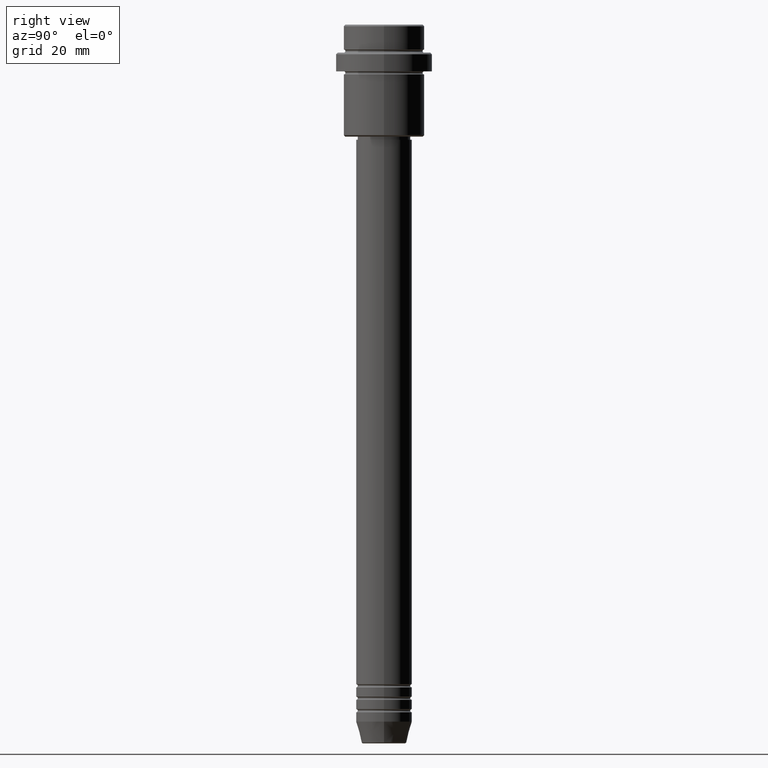
[diagram: clean part render]
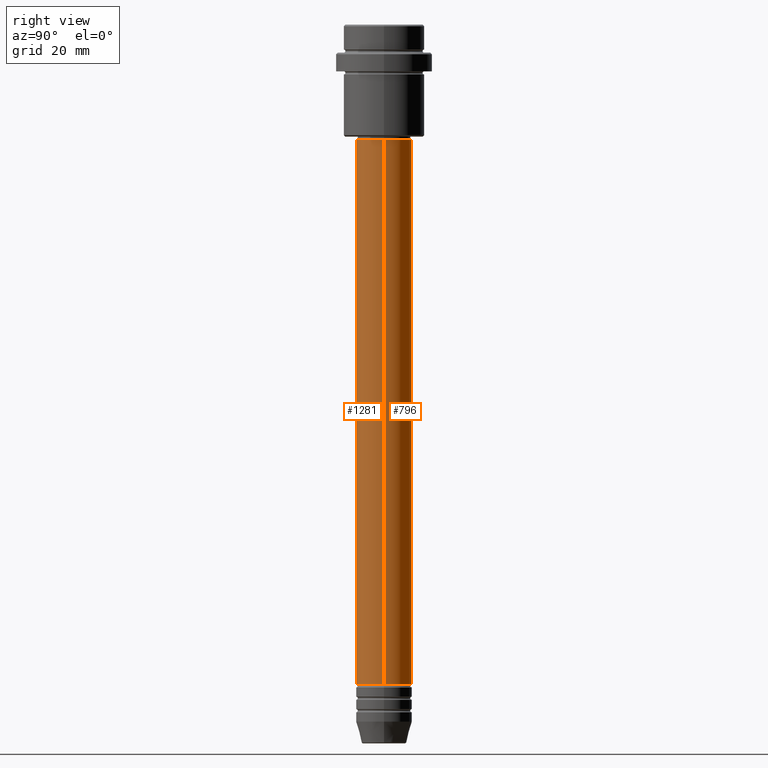
[diagram: same view with one multi-face feature highlighted, each face labeled with its STEP entity id]
A machine part, right view. The highlighted faces form ONE feature: a constant-radius fillet chain: 2 tangent blend faces with common blend radius 9 mm. The faces share edges in the B-rep.
Their STEP definitions:
[1] entity #1281 (Cylinder):
#24 = FACE_OUTER_BOUND ( 'NONE', #227, .T. ) ;
#79 = EDGE_CURVE ( 'NONE', #147, #288, #219, .T. ) ;
#119 = CARTESIAN_POINT ( 'NONE',  ( 0.000000000000000000, 0.000000000000000000, 0.000000000000000000 ) ) ;
#137 = ORIENTED_EDGE ( 'NONE', *, *, #79, .T. ) ;
#147 = VERTEX_POINT ( 'NONE', #1400 ) ;
#149 = LINE ( 'NONE', #588, #850 ) ;
#152 = CARTESIAN_POINT ( 'NONE',  ( 0.000000000000000000, 0.000000000000000000, -37.00000000000001421 ) ) ;
#219 = LINE ( 'NONE', #774, #389 ) ;
#227 = EDGE_LOOP ( 'NONE', ( #1068, #361, #137, #1385 ) ) ;
#254 = CIRCLE ( 'NONE', #961, 9.000000000000000000 ) ;
#270 = EDGE_CURVE ( 'NONE', #687, #147, #254, .T. ) ;
#288 = VERTEX_POINT ( 'NONE', #457 ) ;
#361 = ORIENTED_EDGE ( 'NONE', *, *, #270, .T. ) ;
#389 = VECTOR ( 'NONE', #446, 1000.000000000000000 ) ;
#416 = CIRCLE ( 'NONE', #1058, 9.000000000000001776 ) ;
#446 = DIRECTION ( 'NONE',  ( -0.000000000000000000, -0.000000000000000000, 1.000000000000000000 ) ) ;
#457 = CARTESIAN_POINT ( 'NONE',  ( 9.000000000000001776, 0.000000000000000000, -37.00000000000001421 ) ) ;
#582 = DIRECTION ( 'NONE',  ( -0.000000000000000000, -0.000000000000000000, 1.000000000000000000 ) ) ;
#588 = CARTESIAN_POINT ( 'NONE',  ( -9.000000000000001776, 1.102182119232617911E-15, 0.000000000000000000 ) ) ;
#598 = DIRECTION ( 'NONE',  ( -0.000000000000000000, -0.000000000000000000, 1.000000000000000000 ) ) ;
#622 = EDGE_CURVE ( 'NONE', #687, #1361, #149, .T. ) ;
#687 = VERTEX_POINT ( 'NONE', #861 ) ;
#773 = DIRECTION ( 'NONE',  ( 1.000000000000000000, 0.000000000000000000, 0.000000000000000000 ) ) ;
#774 = CARTESIAN_POINT ( 'NONE',  ( 9.000000000000001776, 0.000000000000000000, 0.000000000000000000 ) ) ;
#850 = VECTOR ( 'NONE', #1023, 1000.000000000000000 ) ;
#852 = AXIS2_PLACEMENT_3D ( 'NONE', #119, #886, #773 ) ;
#861 = CARTESIAN_POINT ( 'NONE',  ( -9.000000000000000000, 1.102182119232617714E-15, -211.9999999999999432 ) ) ;
#886 = DIRECTION ( 'NONE',  ( -0.000000000000000000, -0.000000000000000000, 1.000000000000000000 ) ) ;
#923 = CARTESIAN_POINT ( 'NONE',  ( 0.000000000000000000, 0.000000000000000000, -211.9999999999999432 ) ) ;
#961 = AXIS2_PLACEMENT_3D ( 'NONE', #923, #582, #1338 ) ;
#1018 = EDGE_CURVE ( 'NONE', #1361, #288, #416, .T. ) ;
#1023 = DIRECTION ( 'NONE',  ( -0.000000000000000000, -0.000000000000000000, 1.000000000000000000 ) ) ;
#1058 = AXIS2_PLACEMENT_3D ( 'NONE', #152, #598, #1339 ) ;
#1068 = ORIENTED_EDGE ( 'NONE', *, *, #622, .F. ) ;
#1096 = CYLINDRICAL_SURFACE ( 'NONE', #852, 9.000000000000001776 ) ;
#1281 = ADVANCED_FACE ( 'NONE', ( #24 ), #1096, .T. ) ;
#1338 = DIRECTION ( 'NONE',  ( 1.000000000000000000, 0.000000000000000000, 0.000000000000000000 ) ) ;
#1339 = DIRECTION ( 'NONE',  ( 1.000000000000000000, 0.000000000000000000, 0.000000000000000000 ) ) ;
#1345 = CARTESIAN_POINT ( 'NONE',  ( -9.000000000000001776, 1.102182119232617911E-15, -37.00000000000001421 ) ) ;
#1361 = VERTEX_POINT ( 'NONE', #1345 ) ;
#1385 = ORIENTED_EDGE ( 'NONE', *, *, #1018, .F. ) ;
#1400 = CARTESIAN_POINT ( 'NONE',  ( 9.000000000000000000, 0.000000000000000000, -211.9999999999999432 ) ) ;
[2] entity #796 (Cylinder):
#31 = AXIS2_PLACEMENT_3D ( 'NONE', #982, #1228, #989 ) ;
#79 = EDGE_CURVE ( 'NONE', #147, #288, #219, .T. ) ;
#147 = VERTEX_POINT ( 'NONE', #1400 ) ;
#149 = LINE ( 'NONE', #588, #850 ) ;
#151 = CARTESIAN_POINT ( 'NONE',  ( 0.000000000000000000, 0.000000000000000000, -37.00000000000001421 ) ) ;
#191 = ORIENTED_EDGE ( 'NONE', *, *, #311, .F. ) ;
#219 = LINE ( 'NONE', #774, #389 ) ;
#288 = VERTEX_POINT ( 'NONE', #457 ) ;
#311 = EDGE_CURVE ( 'NONE', #288, #1361, #646, .T. ) ;
#389 = VECTOR ( 'NONE', #446, 1000.000000000000000 ) ;
#407 = DIRECTION ( 'NONE',  ( -0.000000000000000000, -0.000000000000000000, 1.000000000000000000 ) ) ;
#409 = FACE_OUTER_BOUND ( 'NONE', #410, .T. ) ;
#410 = EDGE_LOOP ( 'NONE', ( #955, #1207, #191, #797 ) ) ;
#418 = EDGE_CURVE ( 'NONE', #147, #687, #1147, .T. ) ;
#440 = AXIS2_PLACEMENT_3D ( 'NONE', #151, #1346, #591 ) ;
#446 = DIRECTION ( 'NONE',  ( -0.000000000000000000, -0.000000000000000000, 1.000000000000000000 ) ) ;
#457 = CARTESIAN_POINT ( 'NONE',  ( 9.000000000000001776, 0.000000000000000000, -37.00000000000001421 ) ) ;
#588 = CARTESIAN_POINT ( 'NONE',  ( -9.000000000000001776, 1.102182119232617911E-15, 0.000000000000000000 ) ) ;
#591 = DIRECTION ( 'NONE',  ( 1.000000000000000000, 0.000000000000000000, 0.000000000000000000 ) ) ;
#599 = CYLINDRICAL_SURFACE ( 'NONE', #31, 9.000000000000001776 ) ;
#622 = EDGE_CURVE ( 'NONE', #687, #1361, #149, .T. ) ;
#646 = CIRCLE ( 'NONE', #440, 9.000000000000001776 ) ;
#687 = VERTEX_POINT ( 'NONE', #861 ) ;
#774 = CARTESIAN_POINT ( 'NONE',  ( 9.000000000000001776, 0.000000000000000000, 0.000000000000000000 ) ) ;
#796 = ADVANCED_FACE ( 'NONE', ( #409 ), #599, .T. ) ;
#797 = ORIENTED_EDGE ( 'NONE', *, *, #79, .F. ) ;
#826 = AXIS2_PLACEMENT_3D ( 'NONE', #845, #407, #1279 ) ;
#845 = CARTESIAN_POINT ( 'NONE',  ( 0.000000000000000000, 0.000000000000000000, -211.9999999999999432 ) ) ;
#850 = VECTOR ( 'NONE', #1023, 1000.000000000000000 ) ;
#861 = CARTESIAN_POINT ( 'NONE',  ( -9.000000000000000000, 1.102182119232617714E-15, -211.9999999999999432 ) ) ;
#955 = ORIENTED_EDGE ( 'NONE', *, *, #418, .T. ) ;
#982 = CARTESIAN_POINT ( 'NONE',  ( 0.000000000000000000, 0.000000000000000000, 0.000000000000000000 ) ) ;
#989 = DIRECTION ( 'NONE',  ( 1.000000000000000000, 0.000000000000000000, 0.000000000000000000 ) ) ;
#1023 = DIRECTION ( 'NONE',  ( -0.000000000000000000, -0.000000000000000000, 1.000000000000000000 ) ) ;
#1147 = CIRCLE ( 'NONE', #826, 9.000000000000000000 ) ;
#1207 = ORIENTED_EDGE ( 'NONE', *, *, #622, .T. ) ;
#1228 = DIRECTION ( 'NONE',  ( -0.000000000000000000, -0.000000000000000000, 1.000000000000000000 ) ) ;
#1279 = DIRECTION ( 'NONE',  ( 1.000000000000000000, 0.000000000000000000, 0.000000000000000000 ) ) ;
#1345 = CARTESIAN_POINT ( 'NONE',  ( -9.000000000000001776, 1.102182119232617911E-15, -37.00000000000001421 ) ) ;
#1346 = DIRECTION ( 'NONE',  ( -0.000000000000000000, -0.000000000000000000, 1.000000000000000000 ) ) ;
#1361 = VERTEX_POINT ( 'NONE', #1345 ) ;
#1400 = CARTESIAN_POINT ( 'NONE',  ( 9.000000000000000000, 0.000000000000000000, -211.9999999999999432 ) ) ;